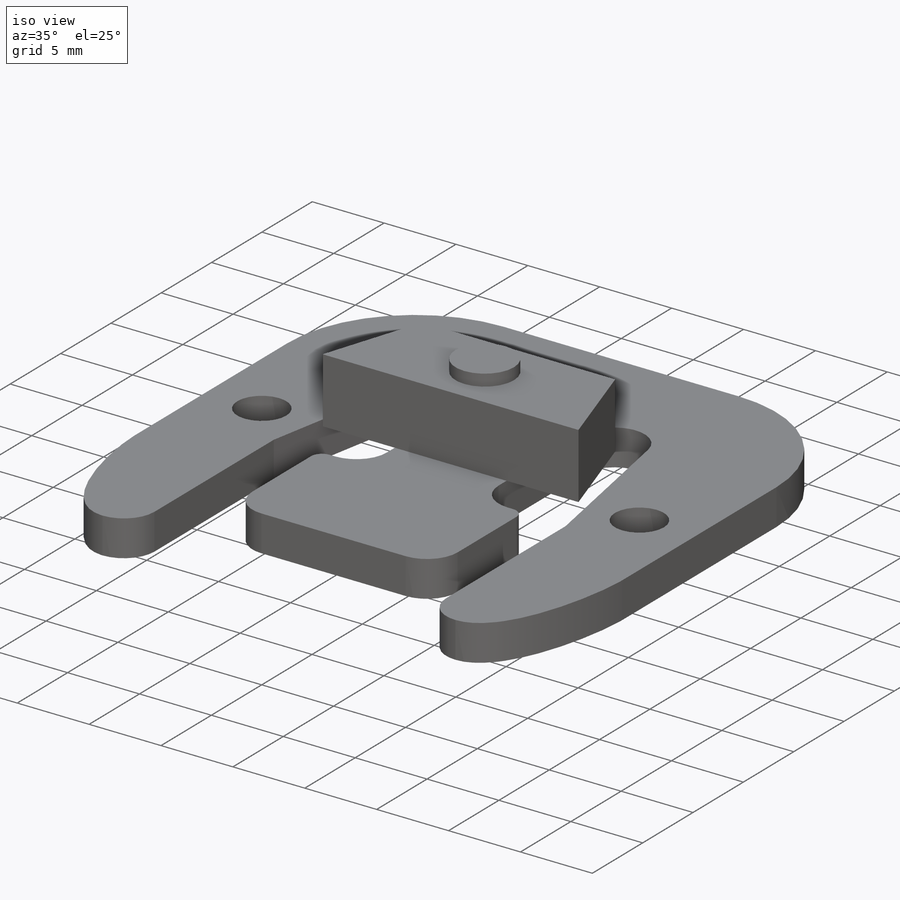
[diagram: iso view]
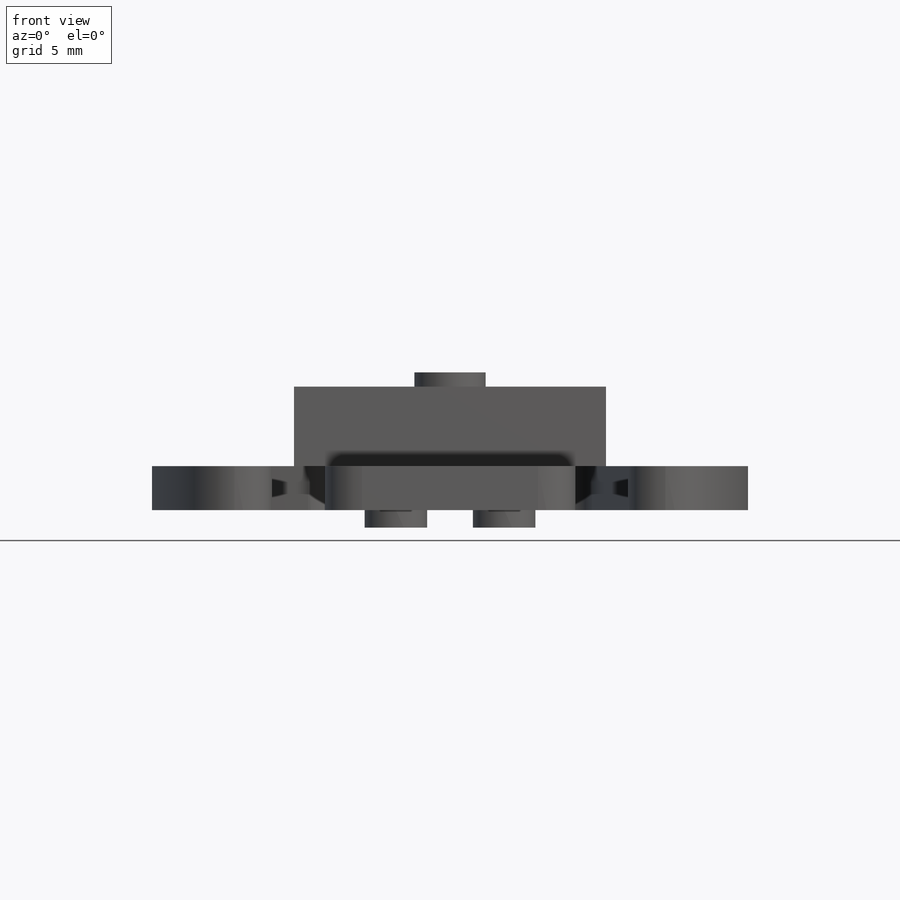
[diagram: front view]
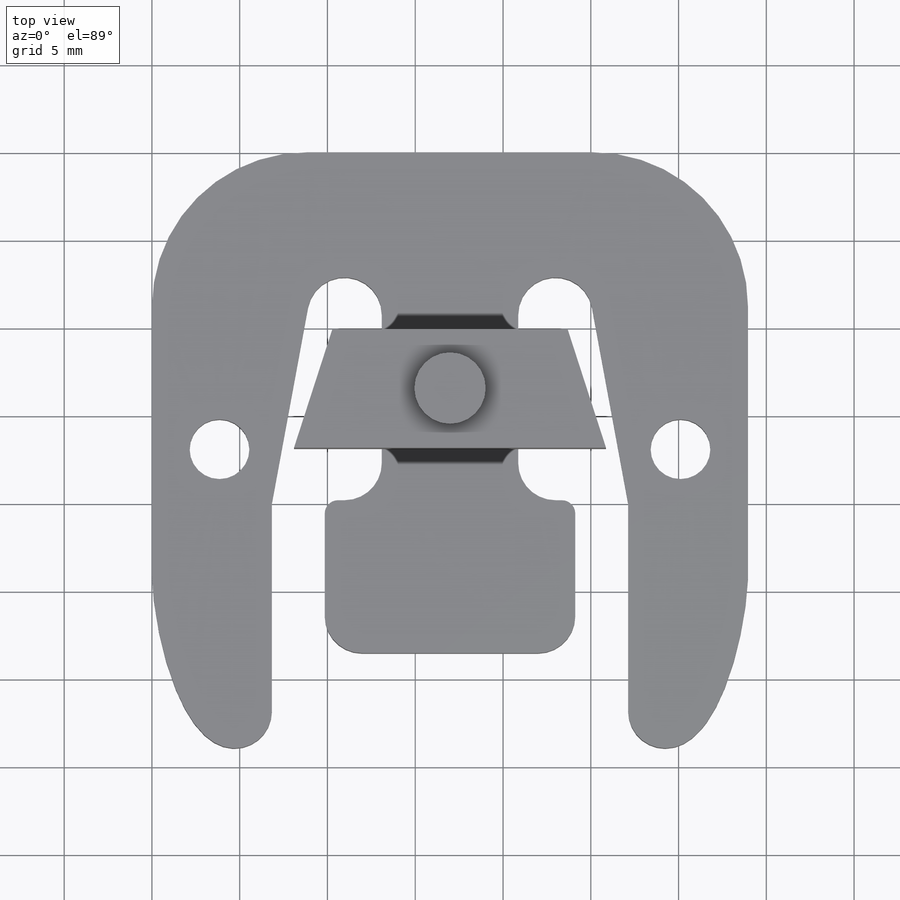
[diagram: top view]
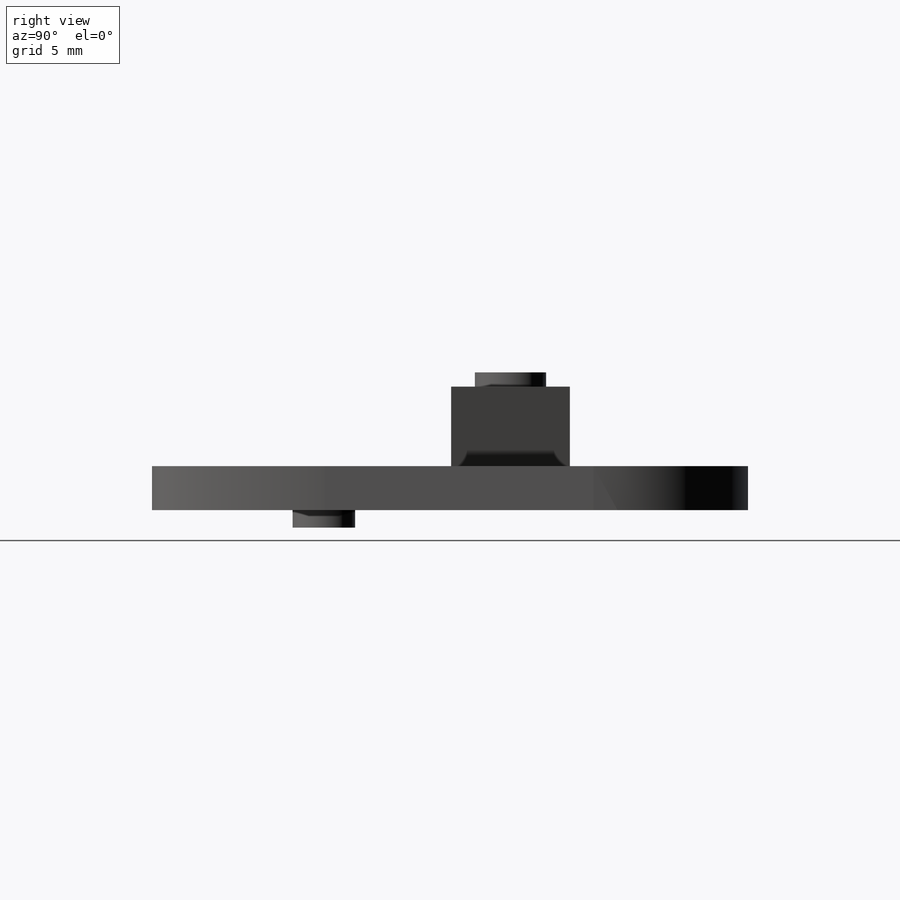
[diagram: right view]
SOLIDWORKS PART (.sldprt)
format: sldprt  version: not decoded by parser v0  size: 252,416 bytes
history: native  units: mm
features: sketch x4, extrude x4, material x1 (+11 scaffold rows collapsed)
feature tree (20):
  scaffold x11  (default folders/planes/origin — collapsed)
  material  "Material <not specified>"
  sketch  "Sketch1"  dims[c1.D3=8.8138mm c1.D5=2.1209mm c1.D12=2.1209mm c1.D13=2.1209mm c1.D14=0.762mm c1.D15=3.4036mm c1.D1=33.9598mm c1.D2=33.9598mm c1.D4=6.8326mm c1.D6=7.1374mm c1.D7=5.4229mm c1.D8=9.2456mm c1.D9=10.9728mm c1.D10=13.97mm c1.D11=8.7122mm c2.D2=33.9598mm c2.D16=3.8481mm c2.D17=16.9164mm]
  extrude  "Boss-Extrude1"  Depth=2.5019mm
  sketch  "Sketch2"  dims[D1=17.78mm D2=6.7691mm D3=13.3985mm]
  extrude  "Boss-Extrude2"  Depth=4.5339mm
  sketch  "Sketch3"  dims[D1=4.064mm]
  extrude  "Boss-Extrude3"  Depth=0.8128mm
  sketch  "Sketch4"
  extrude  "Boss-Extrude4"  Depth=1.0033mm
decode coverage: 7 of 8 modeling features carry decoded parameters
note: suppression state not decoded; provenance and decode notes live in map.json
